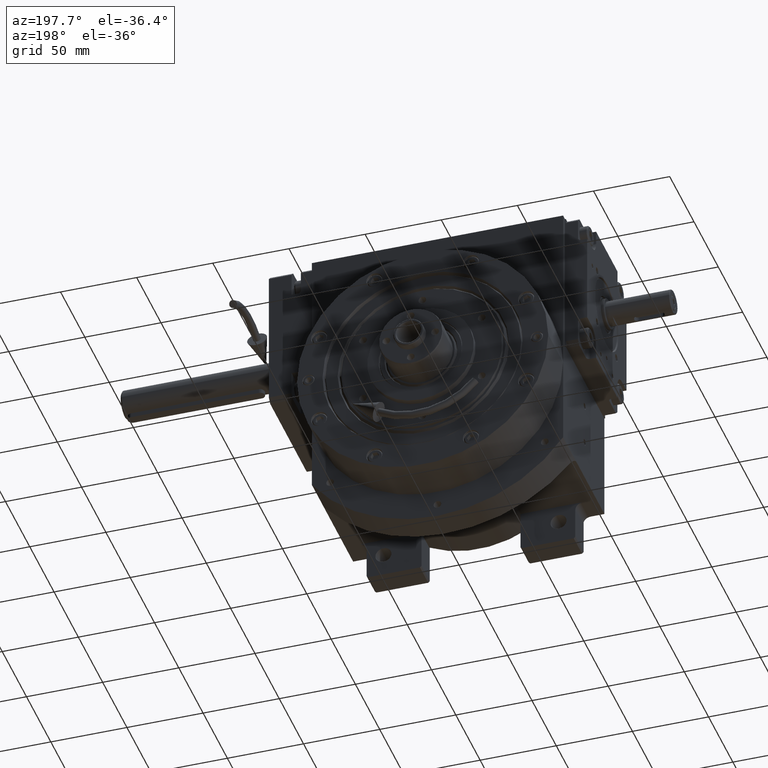
[diagram: clean part render]
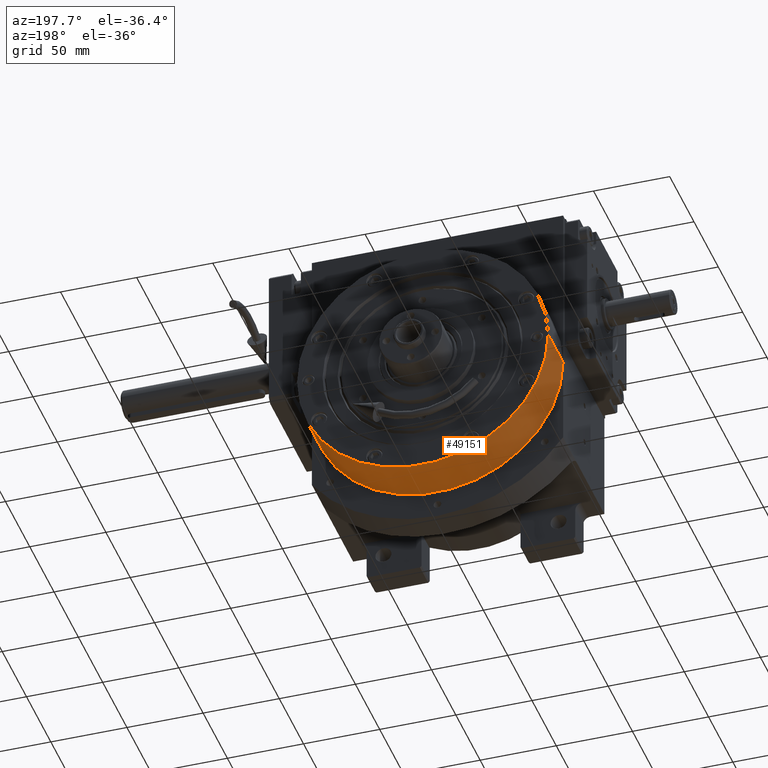
[diagram: same view with one face highlighted and labeled with its STEP entity id]
A machine part, auxiliary view. The second image highlights one B-rep face of the part: STEP entity #49151.
In plain terms, the highlighted cylindrical surface (partial cylindrical patch) has radius 82.5 mm, axis along (0, -1, 0).
Its self-contained STEP definition (entity closure, byte-faithful):
#509 = CIRCLE ( 'NONE', #28536, 82.50000000000000000 ) ;
#716 = EDGE_CURVE ( 'NONE', #42984, #29301, #27870, .T. ) ;
#2379 = DIRECTION ( 'NONE',  ( 1.000000000000000000, 0.000000000000000000, 0.000000000000000000 ) ) ;
#2849 = CARTESIAN_POINT ( 'NONE',  ( 0.000000000000000000, 0.000000000000000000, 0.000000000000000000 ) ) ;
#12418 = CARTESIAN_POINT ( 'NONE',  ( 82.50000000000000000, 0.000000000000000000, 0.000000000000000000 ) ) ;
#14673 = VECTOR ( 'NONE', #49294, 1000.000000000000000 ) ;
#15128 = CARTESIAN_POINT ( 'NONE',  ( -82.50000000000000000, 1.010333609296565919E-14, 0.000000000000000000 ) ) ;
#15202 = ORIENTED_EDGE ( 'NONE', *, *, #716, .F. ) ;
#15942 = VECTOR ( 'NONE', #36521, 1000.000000000000000 ) ;
#16664 = EDGE_CURVE ( 'NONE', #29301, #40298, #509, .T. ) ;
#17419 = EDGE_LOOP ( 'NONE', ( #36355, #40600, #15202, #36603 ) ) ;
#19365 = DIRECTION ( 'NONE',  ( 0.000000000000000000, 0.000000000000000000, 1.000000000000000000 ) ) ;
#19460 = CARTESIAN_POINT ( 'NONE',  ( 82.50000000000000000, 0.000000000000000000, 30.50000000000000711 ) ) ;
#19689 = CYLINDRICAL_SURFACE ( 'NONE', #60031, 82.50000000000000000 ) ;
#21501 = AXIS2_PLACEMENT_3D ( 'NONE', #38426, #19365, #66819 ) ;
#23282 = VERTEX_POINT ( 'NONE', #58407 ) ;
#27870 = LINE ( 'NONE', #12418, #14673 ) ;
#28536 = AXIS2_PLACEMENT_3D ( 'NONE', #45878, #51165, #2379 ) ;
#29301 = VERTEX_POINT ( 'NONE', #19460 ) ;
#34985 = CIRCLE ( 'NONE', #21501, 82.50000000000000000 ) ;
#35152 = CARTESIAN_POINT ( 'NONE',  ( -82.50000000000000000, 3.367778697655219730E-15, 30.50000000000000711 ) ) ;
#36355 = ORIENTED_EDGE ( 'NONE', *, *, #41890, .T. ) ;
#36521 = DIRECTION ( 'NONE',  ( 0.000000000000000000, 0.000000000000000000, 1.000000000000000000 ) ) ;
#36603 = ORIENTED_EDGE ( 'NONE', *, *, #41759, .T. ) ;
#38426 = CARTESIAN_POINT ( 'NONE',  ( 0.000000000000000000, 0.000000000000000000, 0.000000000000000000 ) ) ;
#38692 = CARTESIAN_POINT ( 'NONE',  ( 82.50000000000000000, 0.000000000000000000, 0.000000000000000000 ) ) ;
#40298 = VERTEX_POINT ( 'NONE', #35152 ) ;
#40600 = ORIENTED_EDGE ( 'NONE', *, *, #16664, .F. ) ;
#41759 = EDGE_CURVE ( 'NONE', #42984, #23282, #34985, .T. ) ;
#41776 = LINE ( 'NONE', #15128, #15942 ) ;
#41890 = EDGE_CURVE ( 'NONE', #23282, #40298, #41776, .T. ) ;
#42984 = VERTEX_POINT ( 'NONE', #38692 ) ;
#45878 = CARTESIAN_POINT ( 'NONE',  ( 0.000000000000000000, 0.000000000000000000, 30.50000000000000711 ) ) ;
#49151 = ADVANCED_FACE ( 'NONE', ( #50270 ), #19689, .T. ) ;
#49294 = DIRECTION ( 'NONE',  ( 0.000000000000000000, 0.000000000000000000, 1.000000000000000000 ) ) ;
#50270 = FACE_OUTER_BOUND ( 'NONE', #17419, .T. ) ;
#51165 = DIRECTION ( 'NONE',  ( 0.000000000000000000, 0.000000000000000000, 1.000000000000000000 ) ) ;
#55884 = DIRECTION ( 'NONE',  ( 1.000000000000000000, 0.000000000000000000, 0.000000000000000000 ) ) ;
#58407 = CARTESIAN_POINT ( 'NONE',  ( -82.50000000000000000, 3.367778697655219730E-15, 0.000000000000000000 ) ) ;
#60031 = AXIS2_PLACEMENT_3D ( 'NONE', #2849, #67137, #55884 ) ;
#66819 = DIRECTION ( 'NONE',  ( 1.000000000000000000, 0.000000000000000000, 0.000000000000000000 ) ) ;
#67137 = DIRECTION ( 'NONE',  ( 0.000000000000000000, 0.000000000000000000, -1.000000000000000000 ) ) ;